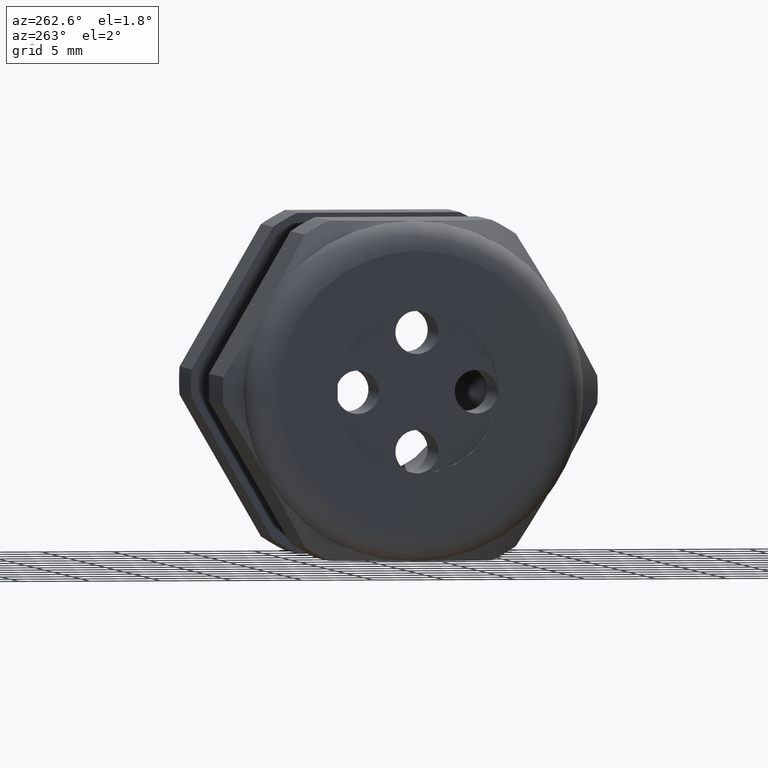
[diagram: clean part render]
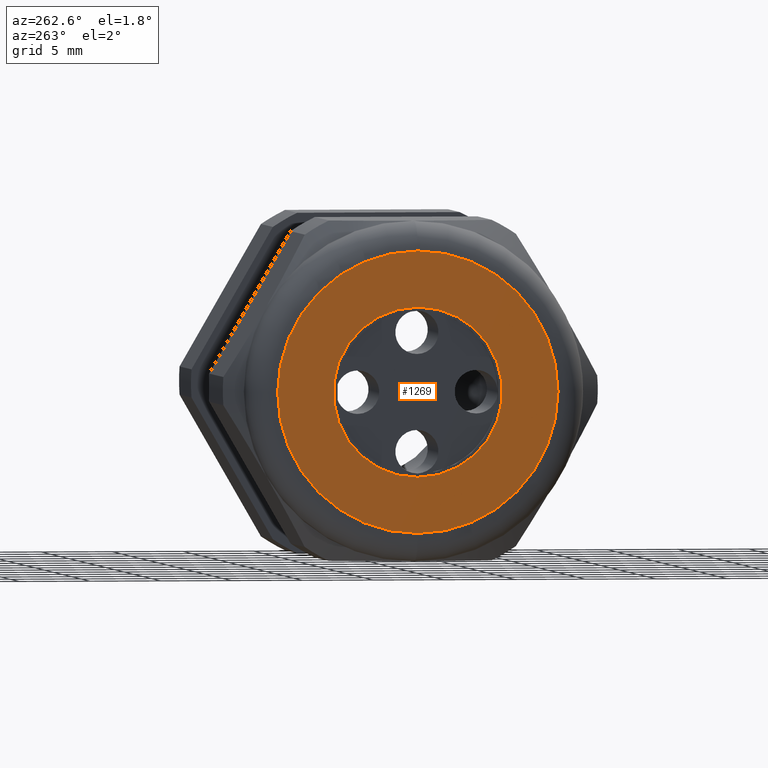
[diagram: same view with one face highlighted and labeled with its STEP entity id]
A machine part, auxiliary view. The second image highlights one B-rep face of the part: STEP entity #1269.
In plain terms, the highlighted planar face has unit normal (-1, 0, 0).
Its self-contained STEP definition (entity closure, byte-faithful):
#645 = VERTEX_POINT ( 'NONE', #2944 ) ;
#647 = EDGE_CURVE ( 'NONE', #648, #645, #2942, .T. ) ;
#648 = VERTEX_POINT ( 'NONE', #2943 ) ;
#702 = EDGE_CURVE ( 'NONE', #703, #704, #3077, .T. ) ;
#703 = VERTEX_POINT ( 'NONE', #3068 ) ;
#704 = VERTEX_POINT ( 'NONE', #3067 ) ;
#1193 = EDGE_LOOP ( 'NONE', ( #1194, #1195 ) ) ;
#1194 = ORIENTED_EDGE ( 'NONE', *, *, #647, .T. ) ;
#1195 = ORIENTED_EDGE ( 'NONE', *, *, #1196, .T. ) ;
#1196 = EDGE_CURVE ( 'NONE', #645, #648, #4066, .T. ) ;
#1197 = EDGE_LOOP ( 'NONE', ( #1198, #1253 ) ) ;
#1198 = ORIENTED_EDGE ( 'NONE', *, *, #1266, .T. ) ;
#1253 = ORIENTED_EDGE ( 'NONE', *, *, #702, .T. ) ;
#1266 = EDGE_CURVE ( 'NONE', #704, #703, #4191, .T. ) ;
#1269 = ADVANCED_FACE ( 'NONE', ( #4192, #4249 ), #4248, .T. ) ;
#2938 = DIRECTION ( 'NONE',  ( 0.0000000000000000000, 0.0000000000000000000, 1.000000000000000000 ) ) ;
#2939 = DIRECTION ( 'NONE',  ( -1.000000000000000000, 0.0000000000000000000, 0.0000000000000000000 ) ) ;
#2940 = CARTESIAN_POINT ( 'NONE',  ( -1.409999999999999900, 0.0000000000000000000, 0.0000000000000000000 ) ) ;
#2941 = AXIS2_PLACEMENT_3D ( 'NONE', #2940, #2939, #2938 ) ;
#2942 = CIRCLE ( 'NONE', #2941, 0.3899999999999999600 ) ;
#2943 = CARTESIAN_POINT ( 'NONE',  ( -1.409999999999999900, 0.0000000000000000000, 0.3899999999999999600 ) ) ;
#2944 = CARTESIAN_POINT ( 'NONE',  ( -1.409999999999999900, 5.265981236333617600E-017, -0.3899999999999999600 ) ) ;
#3067 = CARTESIAN_POINT ( 'NONE',  ( -1.409999999999999900, 0.0000000000000000000, -0.2349999999999999900 ) ) ;
#3068 = CARTESIAN_POINT ( 'NONE',  ( -1.409999999999999900, 2.877919977996279800E-017, 0.2349999999999999900 ) ) ;
#3069 = DIRECTION ( 'NONE',  ( 0.0000000000000000000, 0.0000000000000000000, -1.000000000000000000 ) ) ;
#3070 = DIRECTION ( 'NONE',  ( 1.000000000000000000, 0.0000000000000000000, 0.0000000000000000000 ) ) ;
#3071 = CARTESIAN_POINT ( 'NONE',  ( -1.409999999999999900, 0.0000000000000000000, 0.0000000000000000000 ) ) ;
#3072 = AXIS2_PLACEMENT_3D ( 'NONE', #3071, #3070, #3069 ) ;
#3077 = CIRCLE ( 'NONE', #3072, 0.2349999999999999900 ) ;
#4062 = DIRECTION ( 'NONE',  ( 0.0000000000000000000, 0.0000000000000000000, 1.000000000000000000 ) ) ;
#4063 = DIRECTION ( 'NONE',  ( -1.000000000000000000, 0.0000000000000000000, 0.0000000000000000000 ) ) ;
#4064 = CARTESIAN_POINT ( 'NONE',  ( -1.409999999999999900, 0.0000000000000000000, 0.0000000000000000000 ) ) ;
#4065 = AXIS2_PLACEMENT_3D ( 'NONE', #4064, #4063, #4062 ) ;
#4066 = CIRCLE ( 'NONE', #4065, 0.3899999999999999600 ) ;
#4188 = DIRECTION ( 'NONE',  ( 1.000000000000000000, 0.0000000000000000000, 0.0000000000000000000 ) ) ;
#4189 = CARTESIAN_POINT ( 'NONE',  ( -1.409999999999999900, 0.0000000000000000000, 0.0000000000000000000 ) ) ;
#4190 = AXIS2_PLACEMENT_3D ( 'NONE', #4189, #4188, #4250 ) ;
#4191 = CIRCLE ( 'NONE', #4190, 0.2349999999999999900 ) ;
#4192 = FACE_OUTER_BOUND ( 'NONE', #1193, .T. ) ;
#4244 = DIRECTION ( 'NONE',  ( 0.0000000000000000000, 0.0000000000000000000, 1.000000000000000000 ) ) ;
#4245 = DIRECTION ( 'NONE',  ( -1.000000000000000000, 0.0000000000000000000, 0.0000000000000000000 ) ) ;
#4246 = CARTESIAN_POINT ( 'NONE',  ( -1.409999999999999900, 0.4699999999999999200, 0.0000000000000000000 ) ) ;
#4247 = AXIS2_PLACEMENT_3D ( 'NONE', #4246, #4245, #4244 ) ;
#4248 = PLANE ( 'NONE',  #4247 ) ;
#4249 = FACE_BOUND ( 'NONE', #1197, .T. ) ;
#4250 = DIRECTION ( 'NONE',  ( 0.0000000000000000000, 0.0000000000000000000, -1.000000000000000000 ) ) ;